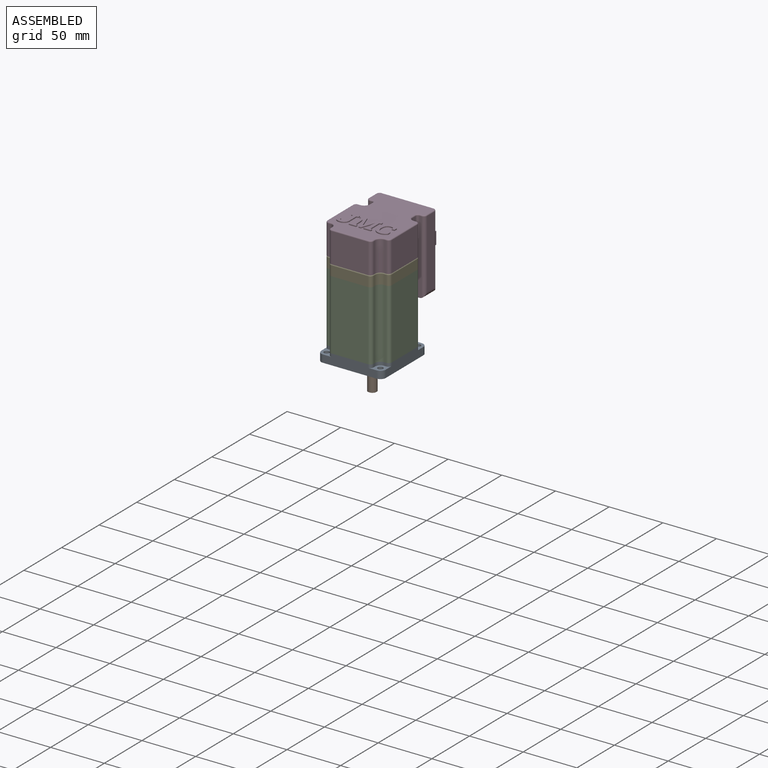
[diagram: assembled view]
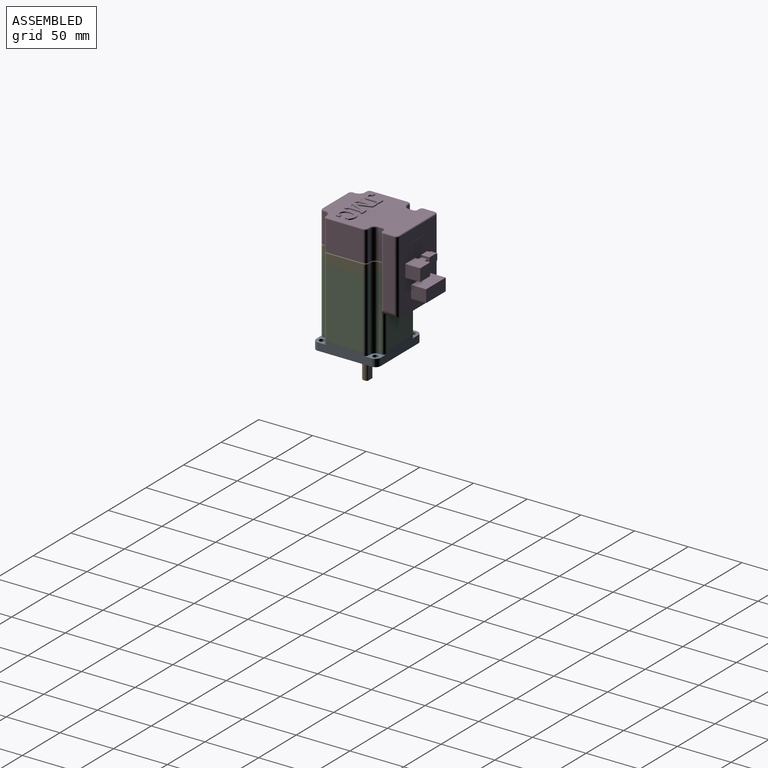
[diagram: assembled view, second angle]
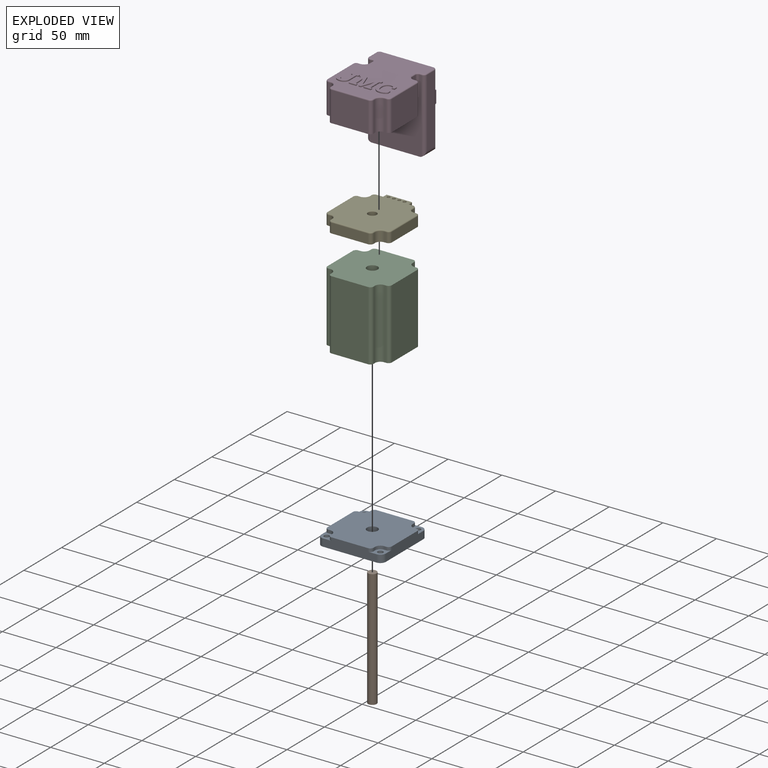
[diagram: exploded view]
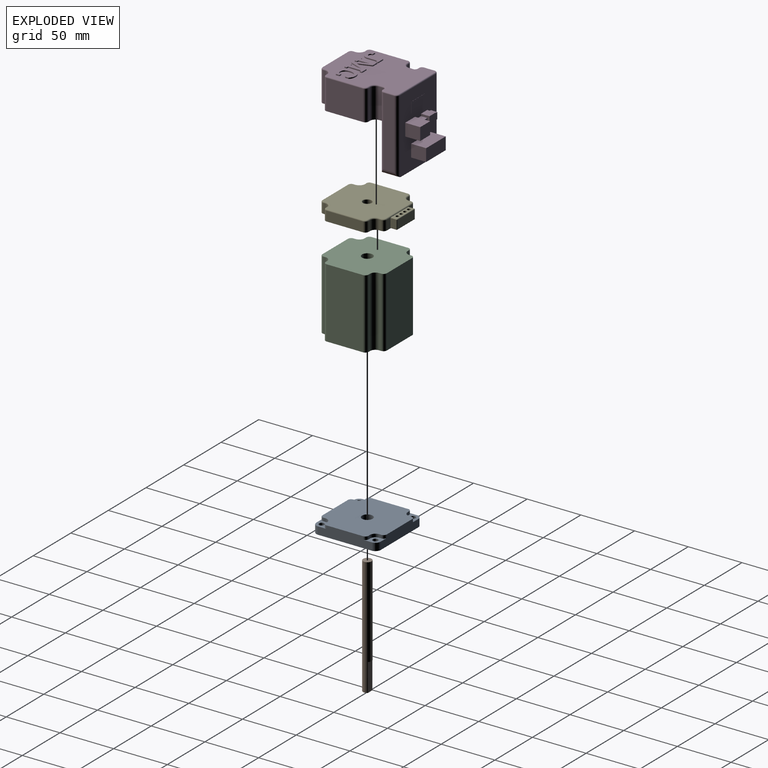
[diagram: exploded view, second angle]
ASSEMBLY  parts=5 mates=4
PART A: 45 faces, bbox 60x60x11.2 mm
  f0: plane 60x60mm, normal (0,0,-1), area 2447.6mm2, adj f5,f6,f7,f8,f9,f10,f11,f12
  f1: plane 13x13mm, normal (0,0,1), area 73.5mm2, adj f6,f7,f8,f14,f32,f33,f34,f35
  f2: plane 13x13mm, normal (0,0,1), area 73.5mm2, adj f10,f11,f12,f16,f22,f23,f24,f25
  f3: plane 13x13mm, normal (0,0,1), area 73.5mm2, adj f8,f9,f10,f13,f17,f18,f19,f20
  f4: plane 13x13mm, normal (0,0,1), area 73.5mm2, adj f5,f6,f12,f15,f27,f28,f29,f30
  f5: cylinder r=5mm len=7mm, axis (0,0,-1), area 55mm2, adj f0,f4,f6,f12
  f6: plane 50x10mm, normal (1,0,0), area 452mm2, adj f0,f1,f4,f5,f7,f31,f32,f37
  f7: cylinder r=5mm len=7mm, axis (0,0,-1), area 55mm2, adj f0,f1,f6,f8
  f8: plane 50x10mm, normal (0,1,0), area 452mm2, adj f0,f1,f3,f7,f9,f17,f36,f37
  f9: cylinder r=5mm len=7mm, axis (0,0,-1), area 55mm2, adj f0,f3,f8,f10
  f10: plane 50x10mm, normal (-1,0,0), area 452mm2, adj f0,f2,f3,f9,f11,f21,f22,f37
  f11: cylinder r=5mm len=7mm, axis (0,0,-1), area 55mm2, adj f0,f2,f10,f12
  f12: plane 50x10mm, normal (0,-1,0), area 452mm2, adj f0,f2,f4,f5,f11,f26,f27,f37
  f13: cylinder r=2.5mm len=6.5mm, axis (0,0,-1), area 102.1mm2, adj f3,f42
  f14: cylinder r=2.5mm len=6.5mm, axis (0,0,-1), area 102.1mm2, adj f1,f43
  f15: cylinder r=2.5mm len=6.5mm, axis (0,0,-1), area 102.1mm2, adj f4,f40
  f16: cylinder r=2.5mm len=6.5mm, axis (0,0,-1), area 102.1mm2, adj f2,f41
  f17: cylinder r=3mm len=3mm, axis (0,0,-1), area 14.1mm2, adj f3,f8,f18,f37
  f18: plane 3x2mm, normal (-1,0,0), area 6mm2, adj f3,f17,f19,f37
  f19: cylinder r=5mm len=5mm, axis (0,0,-1), area 23.6mm2, adj f3,f18,f20,f37
  f20: plane 3x2mm, normal (0,1,0), area 6mm2, adj f3,f19,f21,f37
  f21: cylinder r=3mm len=3mm, axis (0,0,-1), area 14.1mm2, adj f3,f10,f20,f37
  f22: cylinder r=3mm len=3mm, axis (0,0,-1), area 14.1mm2, adj f2,f10,f23,f37
  f23: plane 3x2mm, normal (0,-1,0), area 6mm2, adj f2,f22,f24,f37
  f24: cylinder r=5mm len=5mm, axis (0,0,-1), area 23.6mm2, adj f2,f23,f25,f37
  f25: plane 3x2mm, normal (-1,0,0), area 6mm2, adj f2,f24,f26,f37
  f26: cylinder r=3mm len=3mm, axis (0,0,-1), area 14.1mm2, adj f2,f12,f25,f37
  f27: cylinder r=3mm len=3mm, axis (0,0,-1), area 14.1mm2, adj f4,f12,f28,f37
  f28: plane 3x2mm, normal (1,0,0), area 6mm2, adj f4,f27,f29,f37
  f29: cylinder r=5mm len=5mm, axis (0,0,-1), area 23.6mm2, adj f4,f28,f30,f37
  f30: plane 3x2mm, normal (0,-1,0), area 6mm2, adj f4,f29,f31,f37
  f31: cylinder r=3mm len=3mm, axis (0,0,-1), area 14.1mm2, adj f4,f6,f30,f37
  f32: cylinder r=3mm len=3mm, axis (0,0,-1), area 14.1mm2, adj f1,f6,f33,f37
  f33: plane 3x2mm, normal (0,1,0), area 6mm2, adj f1,f32,f34,f37
  f34: cylinder r=5mm len=5mm, axis (0,0,-1), area 23.6mm2, adj f1,f33,f35,f37
  f35: plane 3x2mm, normal (1,0,0), area 6mm2, adj f1,f34,f36,f37
  f36: cylinder r=3mm len=3mm, axis (0,0,-1), area 14.1mm2, adj f1,f8,f35,f37
  f37: plane 60x60mm, normal (0,0,1), area 3127.5mm2, adj f6,f8,f10,f12,f17,f18,f19,f20
  f38: cylinder r=18mm len=36mm, axis (0,0,1), area 135.7mm2, adj f0,f39
  f39: plane 36x36mm, normal (0,0,-1), area 939.3mm2, adj f38,f44
  f40: torus R=3mm, axis (0,0,1), area 13.2mm2, adj f0,f15
  f41: torus R=3mm, axis (0,0,1), area 13.2mm2, adj f0,f16
  f42: torus R=3mm, axis (0,0,1), area 13.2mm2, adj f0,f13
  f43: torus R=3mm, axis (0,0,1), area 13.2mm2, adj f0,f14
  f44: cylinder r=5mm len=11.2mm, axis (0,0,-1), area 351.9mm2, adj f37,f39
PART B: 8 faces, bbox 8x8x110 mm
  f0: cylinder r=4mm len=110mm, axis (0,0,-1), area 2583.2mm2, adj f1,f2,f6,f7
  f1: plane 8x6.57mm, normal (0,0,1), area 43.1mm2, adj f0,f5,f7
  f2: plane 8x8mm, normal (0,0,-1), area 50.3mm2, adj f0
  f3: cylinder r=0.5mm len=4.9mm, axis (0,0,1), area 15.4mm2, adj f4,f5
  f4: plane 1x1mm, normal (0,0,1), area 0.8mm2, adj f3
  f5: torus R=0.6mm, axis (0,0,1), area 0.5mm2, adj f1,f3
  f6: plane 6.13x1.43mm, normal (0,0,1), area 6.1mm2, adj f0,f7
  f7: plane 26x6.13mm, normal (0,-1,0), area 159.3mm2, adj f0,f1,f6
PART C: 27 faces, bbox 60x60x65 mm
  f0: cylinder r=5mm len=65mm, axis (0,0,-1), area 510.5mm2, adj f1,f23,f24,f25
  f1: plane 65x2mm, normal (-1,0,0), area 130mm2, adj f0,f2,f24,f25
  f2: cylinder r=3mm len=65mm, axis (0,0,-1), area 306.3mm2, adj f1,f3,f24,f25
  f3: plane 65x34mm, normal (0,-1,0), area 2210mm2, adj f2,f4,f24,f25
  f4: cylinder r=3mm len=65mm, axis (0,0,-1), area 306.3mm2, adj f3,f5,f24,f25
  f5: plane 65x2mm, normal (1,0,0), area 130mm2, adj f4,f6,f24,f25
  f6: cylinder r=5mm len=65mm, axis (0,0,-1), area 510.5mm2, adj f5,f7,f24,f25
  f7: plane 65x2mm, normal (0,-1,0), area 130mm2, adj f6,f8,f24,f25
  f8: cylinder r=3mm len=65mm, axis (0,0,-1), area 306.3mm2, adj f7,f9,f24,f25
  f9: plane 65x34mm, normal (1,0,0), area 2210mm2, adj f8,f10,f24,f25
  f10: cylinder r=3mm len=65mm, axis (0,0,-1), area 306.3mm2, adj f9,f11,f24,f25
  f11: plane 65x2mm, normal (0,1,0), area 130mm2, adj f10,f12,f24,f25
  f12: cylinder r=5mm len=65mm, axis (0,0,-1), area 510.5mm2, adj f11,f13,f24,f25
  f13: plane 65x2mm, normal (1,0,0), area 130mm2, adj f12,f14,f24,f25
  f14: cylinder r=3mm len=65mm, axis (0,0,-1), area 306.3mm2, adj f13,f15,f24,f25
  f15: plane 65x34mm, normal (0,1,0), area 2210mm2, adj f14,f16,f24,f25
  f16: cylinder r=3mm len=65mm, axis (0,0,-1), area 306.3mm2, adj f15,f17,f24,f25
  f17: plane 65x2mm, normal (-1,0,0), area 130mm2, adj f16,f18,f24,f25
  f18: cylinder r=5mm len=65mm, axis (0,0,-1), area 510.5mm2, adj f17,f19,f24,f25
  f19: plane 65x2mm, normal (0,1,0), area 130mm2, adj f18,f20,f24,f25
  f20: cylinder r=3mm len=65mm, axis (0,0,-1), area 306.3mm2, adj f19,f21,f24,f25
  f21: plane 65x34mm, normal (-1,0,0), area 2210mm2, adj f20,f22,f24,f25
  f22: cylinder r=3mm len=65mm, axis (0,0,-1), area 306.3mm2, adj f21,f23,f24,f25
  f23: plane 65x2mm, normal (0,-1,0), area 130mm2, adj f0,f22,f24,f25
  f24: plane 60x60mm, normal (0,0,1), area 3127.5mm2, adj f0,f1,f2,f3,f4,f5,f6,f7
  f25: plane 60x60mm, normal (0,0,-1), area 3127.5mm2, adj f0,f1,f2,f3,f4,f5,f6,f7
  f26: cylinder r=5mm len=65mm, axis (0,0,1), area 2042mm2, adj f24,f25
PART D: 176 faces, bbox 60.5x91.2x71 mm
  f0: plane 6x4.85mm, normal (0,0,-1), area 29.1mm2, adj f2,f39,f60,f66
  f1: plane 6x4.85mm, normal (0,0,1), area 29.1mm2, adj f2,f39,f60,f66
  f2: plane 6x4.85mm, normal (0,1,0), area 29.1mm2, adj f0,f1,f60,f66
  f3: cylinder r=3mm len=68.58mm, axis (0,0,-1), area 314.1mm2, adj f4,f38,f43,f167
  f4: plane 64x10mm, normal (1,0,0), area 640mm2, adj f3,f5,f43,f165
  f5: cylinder r=3mm len=68.58mm, axis (0,0,-1), area 314.1mm2, adj f4,f39,f43,f163
  f6: cylinder r=3mm len=68.58mm, axis (0,0,-1), area 314.1mm2, adj f7,f39,f42,f159
  f7: plane 64x10mm, normal (-1,0,0), area 640mm2, adj f6,f8,f42,f157
  f8: cylinder r=3mm len=68.58mm, axis (0,0,-1), area 314.1mm2, adj f7,f38,f42,f155
  f9: plane 44.2x16mm, normal (0,0,-1), area 707.2mm2, adj f38,f39,f42,f43
  f10: plane 34x9mm, normal (0,1,0), area 306mm2, adj f11,f33,f34,f41
  f11: cylinder r=3mm len=9mm, axis (0,0,-1), area 42.4mm2, adj f10,f12,f34,f41
  f12: plane 28x4mm, normal (-1,0,0), area 94mm2, adj f11,f13,f34,f35,f41,f149
  f13: cylinder r=5mm len=28mm, axis (0,0,-1), area 219.9mm2, adj f12,f14,f34,f147
  f14: plane 28x2mm, normal (0,1,0), area 56mm2, adj f13,f15,f34,f145
  f15: cylinder r=3mm len=28mm, axis (0,0,-1), area 131.9mm2, adj f14,f16,f34,f143
  f16: plane 34x28mm, normal (-1,0,0), area 952mm2, adj f15,f17,f34,f144
  f17: cylinder r=3mm len=28mm, axis (0,0,-1), area 131.9mm2, adj f16,f18,f34,f146
  f18: plane 28x2mm, normal (0,-1,0), area 56mm2, adj f17,f19,f34,f148
  f19: cylinder r=5mm len=28mm, axis (0,0,-1), area 219.9mm2, adj f18,f20,f34,f150
  f20: plane 28x2mm, normal (-1,0,0), area 56mm2, adj f19,f21,f34,f152
  f21: cylinder r=3mm len=28mm, axis (0,0,-1), area 131.9mm2, adj f20,f22,f34,f154
  f22: plane 34x28mm, normal (0,-1,0), area 952mm2, adj f21,f23,f34,f156
  f23: cylinder r=3mm len=28mm, axis (0,0,-1), area 131.9mm2, adj f22,f24,f34,f158
  f24: plane 28x2mm, normal (1,0,0), area 56mm2, adj f23,f25,f34,f160
  f25: cylinder r=5mm len=28mm, axis (0,0,-1), area 219.9mm2, adj f24,f26,f34,f162
  f26: plane 28x2mm, normal (0,-1,0), area 56mm2, adj f25,f27,f34,f164
  f27: cylinder r=3mm len=28mm, axis (0,0,-1), area 131.9mm2, adj f26,f28,f34,f166
  f28: plane 34x28mm, normal (1,0,0), area 952mm2, adj f27,f29,f34,f168
  f29: cylinder r=3mm len=28mm, axis (0,0,-1), area 131.9mm2, adj f28,f30,f34,f170
  f30: plane 28x2mm, normal (0,1,0), area 56mm2, adj f29,f31,f34,f172
  f31: cylinder r=5mm len=28mm, axis (0,0,-1), area 219.9mm2, adj f30,f32,f34,f174
  f32: plane 28x2mm, normal (1,0,0), area 56mm2, adj f31,f33,f34,f36,f175
  f33: cylinder r=3mm len=9mm, axis (0,0,-1), area 42.4mm2, adj f10,f32,f34,f41
  f34: plane 60x60mm, normal (0,0,-1), area 3206mm2, adj f10,f11,f12,f13,f14,f15,f16,f17
  f35: cylinder r=2mm len=19mm, axis (0,0,-1), area 59.7mm2, adj f12,f38,f41,f151
  f36: plane 19x2mm, normal (1,0,0), area 38mm2, adj f32,f37,f41,f173
  f37: cylinder r=2mm len=19mm, axis (0,0,-1), area 59.7mm2, adj f36,f38,f41,f171
  f38: plane 69x48.2mm, normal (0,-1,0), area 2489.3mm2, adj f3,f8,f9,f35,f37,f41,f42,f43
  f39: plane 69x48.2mm, normal (0,1,0), area 2550.5mm2, adj f0,f1,f5,f6,f9,f42,f43,f44
  f40: plane 75x58mm, normal (0,0,1), area 3454.1mm2, adj f69,f70,f71,f72,f73,f74,f75,f76
  f41: plane 44x4mm, normal (0,0,-1), area 45.6mm2, adj f10,f11,f12,f33,f35,f36,f37,f38
  f42: cylinder r=5mm len=16mm, axis (0,1,0), area 112.6mm2, adj f6,f7,f8,f9,f38,f39
  f43: cylinder r=5mm len=16mm, axis (0,1,0), area 112.6mm2, adj f3,f4,f5,f9,f38,f39
  f44: plane 14x11.6mm, normal (-1,0,0), area 162.4mm2, adj f39,f45,f47,f48
  f45: plane 26x14mm, normal (0,0,1), area 364mm2, adj f39,f44,f46,f48
  f46: plane 14x11.6mm, normal (1,0,0), area 162.4mm2, adj f39,f45,f47,f48
  f47: plane 26x14mm, normal (0,0,-1), area 364mm2, adj f39,f44,f46,f48
  f48: plane 26x11.6mm, normal (0,1,0), area 301.6mm2, adj f44,f45,f46,f47
  f49: plane 14x11.6mm, normal (-1,0,0), area 162.4mm2, adj f39,f50,f52,f53
  f50: plane 14x13.1mm, normal (0,0,1), area 183.4mm2, adj f39,f49,f51,f53
  f51: plane 14x11.6mm, normal (1,0,0), area 162.4mm2, adj f39,f50,f52,f53
  f52: plane 14x13.1mm, normal (0,0,-1), area 183.4mm2, adj f39,f49,f51,f53
  f53: plane 13.1x11.6mm, normal (0,1,0), area 152mm2, adj f49,f50,f51,f52
  f54: plane 10x0.1mm, normal (-1,0,0), area 1mm2, adj f39,f55,f57,f58
  f55: plane 17x0.1mm, normal (0,0,1), area 1.7mm2, adj f39,f54,f56,f58
  f56: plane 10x0.1mm, normal (1,0,0), area 1mm2, adj f39,f55,f57,f58
  f57: plane 17x0.1mm, normal (0,0,-1), area 1.7mm2, adj f39,f54,f56,f58
  f58: plane 17x10mm, normal (0,1,0), area 170mm2, adj f54,f55,f56,f57
  f59: plane 6x4.85mm, normal (0,0,-1), area 29.1mm2, adj f39,f62,f63,f64
  f60: plane 6x6mm, normal (-1,0,0), area 36mm2, adj f0,f1,f2,f39
  f61: plane 6x4.85mm, normal (0,0,1), area 29.1mm2, adj f39,f62,f63,f64
  f62: plane 6x6mm, normal (1,0,0), area 36mm2, adj f39,f59,f61,f63
  f63: plane 6x4.85mm, normal (0,1,0), area 29.1mm2, adj f59,f61,f62,f64
  f64: plane 11.2x8mm, normal (1,0,0), area 53.6mm2, adj f39,f59,f61,f63,f65,f67,f68
  f65: plane 8.3x8mm, normal (0,0,-1), area 66.4mm2, adj f39,f64,f66,f68
  f66: plane 11.2x8mm, normal (-1,0,0), area 53.6mm2, adj f0,f1,f2,f39,f65,f67,f68
  f67: plane 8.3x8mm, normal (0,0,1), area 66.4mm2, adj f39,f64,f66,f68
  f68: plane 11.2x8.3mm, normal (0,1,0), area 93mm2, adj f64,f65,f66,f67
  f69: plane 1.97x1mm, normal (1,0,0), area 2mm2, adj f40,f70,f85,f86
  f70: plane 6.76x1mm, normal (0,1,0), area 6.8mm2, adj f40,f69,f71,f86
  f71: plane 1.97x1mm, normal (-1,0,0), area 2mm2, adj f40,f70,f72,f86
  f72: plane 1.75x1mm, normal (-0.19,-0.98,0), area 1.8mm2, adj f40,f71,f73,f86
  f73: plane 9.11x1mm, normal (-1,0,0), area 9.1mm2, adj f40,f72,f74,f86
  f74: extruded ~1.92x1mm, area 2.1mm2, adj f40,f73,f75,f86
  f75: extruded ~1.54x1mm, area 1.7mm2, adj f40,f74,f76,f86
  f76: extruded ~1.66x1mm, area 1.8mm2, adj f40,f75,f77,f86
  f77: extruded ~1.88x1mm, area 2mm2, adj f40,f76,f78,f86
  f78: plane 3.18x1mm, normal (0,1,0), area 3.2mm2, adj f40,f77,f79,f86
  f79: plane 1x0.07mm, normal (-0.94,0.35,0), area 0.1mm2, adj f40,f78,f80,f86
  f80: extruded ~3.66x1.44mm, area 4.1mm2, adj f40,f79,f81,f86
  f81: extruded ~4.05x1.24mm, area 4.3mm2, adj f40,f80,f82,f86
  f82: extruded ~3.89x1.38mm, area 4.2mm2, adj f40,f81,f83,f86
  f83: extruded ~3.75x1.54mm, area 4.2mm2, adj f40,f82,f84,f86
  f84: plane 9.11x1mm, normal (1,0,0), area 9.1mm2, adj f40,f83,f85,f86
  f85: plane 1.75x1mm, normal (0.19,-0.98,0), area 1.8mm2, adj f40,f69,f84,f86
  f86: plane 16.55x12.72mm, normal (0,0,1), area 80.6mm2, adj f69,f70,f71,f72,f73,f74,f75,f76
  f87: plane 1x0.07mm, normal (-0.16,-0.99,0), area 0.1mm2, adj f40,f88,f116,f117
  f88: plane 7.21x1mm, normal (-1,0.04,0), area 7.2mm2, adj f40,f87,f89,f117
  f89: plane 2.56x1mm, normal (-1,0,0), area 2.6mm2, adj f40,f88,f90,f117
  f90: plane 1.74x1mm, normal (-0.19,0.98,0), area 1.8mm2, adj f40,f89,f91,f117
  f91: plane 1.96x1mm, normal (-1,0,0), area 2mm2, adj f40,f90,f92,f117
  f92: plane 6.76x1mm, normal (0,-1,0), area 6.8mm2, adj f40,f91,f93,f117
  f93: plane 1.96x1mm, normal (1,0,0), area 2mm2, adj f40,f92,f94,f117
  f94: plane 1.75x1mm, normal (0.19,0.98,0), area 1.8mm2, adj f40,f93,f95,f117
  f95: plane 11.71x1mm, normal (1,0,0), area 11.7mm2, adj f40,f94,f96,f117
  f96: plane 1.75x1mm, normal (0.19,-0.98,0), area 1.8mm2, adj f40,f95,f97,f117
  f97: plane 1.97x1mm, normal (1,0,0), area 2mm2, adj f40,f96,f98,f117
  f98: plane 6.03x1mm, normal (0,1,0), area 6mm2, adj f40,f97,f99,f117
  f99: plane 12.02x4.19mm, normal (-0.94,0.33,0), area 12.7mm2, adj f40,f98,f100,f117
  f100: plane 1x0.07mm, normal (0,1,0), area 0.1mm2, adj f40,f99,f101,f117
  f101: plane 12.02x4.16mm, normal (0.95,0.33,0), area 12.7mm2, adj f40,f100,f102,f117
  f102: plane 6.01x1mm, normal (0,1,0), area 6mm2, adj f40,f101,f103,f117
  f103: plane 1.97x1mm, normal (-1,0,0), area 2mm2, adj f40,f102,f104,f117
  f104: plane 1.74x1mm, normal (-0.19,-0.98,0), area 1.8mm2, adj f40,f103,f105,f117
  f105: plane 11.71x1mm, normal (-1,0,0), area 11.7mm2, adj f40,f104,f106,f117
  f106: plane 1.74x1mm, normal (-0.19,0.98,0), area 1.8mm2, adj f40,f105,f107,f117
  f107: plane 1.96x1mm, normal (-1,0,0), area 2mm2, adj f40,f106,f108,f117
  f108: plane 6.76x1mm, normal (0,-1,0), area 6.8mm2, adj f40,f107,f109,f117
  f109: plane 1.96x1mm, normal (1,0,0), area 2mm2, adj f40,f108,f110,f117
  f110: plane 1.75x1mm, normal (0.19,0.98,0), area 1.8mm2, adj f40,f109,f111,f117
  f111: plane 2.56x1mm, normal (1,0,0), area 2.6mm2, adj f40,f110,f112,f117
  f112: plane 7.16x1mm, normal (1,0.04,0), area 7.2mm2, adj f40,f111,f113,f117
  f113: plane 1x0.07mm, normal (0.16,-0.99,0), area 0.1mm2, adj f40,f112,f114,f117
  f114: plane 12.03x4.35mm, normal (-0.94,-0.34,0), area 12.8mm2, adj f40,f113,f115,f117
  f115: plane 2.19x1mm, normal (0,-1,0), area 2.2mm2, adj f40,f114,f116,f117
  f116: plane 12.08x4.37mm, normal (0.94,-0.34,0), area 12.8mm2, adj f40,f87,f115,f117
  f117: plane 20.45x16.32mm, normal (0,0,1), area 199.2mm2, adj f87,f88,f89,f90,f91,f92,f93,f94
  f118: plane 2.43x1mm, normal (0,-1,0), area 2.4mm2, adj f40,f119,f141,f142
  f119: plane 3.23x1mm, normal (1,0,0), area 3.2mm2, adj f40,f118,f120,f142
  f120: extruded ~2.52x1.82mm, area 3.1mm2, adj f40,f119,f121,f142
  f121: extruded ~3.42x1mm, area 3.5mm2, adj f40,f120,f122,f142
  f122: extruded ~5.39x2.29mm, area 6mm2, adj f40,f121,f123,f142
  f123: extruded ~5.84x2.08mm, area 6.4mm2, adj f40,f122,f124,f142
  f124: plane 1x0.55mm, normal (-1,0,0), area 0.5mm2, adj f40,f123,f125,f142
  f125: extruded ~5.84x2.09mm, area 6.4mm2, adj f40,f124,f126,f142
  f126: extruded ~5.38x2.28mm, area 6mm2, adj f40,f125,f127,f142
  f127: extruded ~3.42x1mm, area 3.5mm2, adj f40,f126,f128,f142
  f128: extruded ~2.52x1.82mm, area 3.1mm2, adj f40,f127,f129,f142
  f129: plane 3.23x1mm, normal (1,0,0), area 3.2mm2, adj f40,f128,f130,f142
  f130: plane 2.43x1mm, normal (0,1,0), area 2.4mm2, adj f40,f129,f131,f142
  f131: plane 2.17x1mm, normal (-0.99,0.15,0), area 2.2mm2, adj f40,f130,f132,f142
  f132: extruded ~1.24x1mm, area 1.5mm2, adj f40,f131,f133,f142
  f133: extruded ~1.76x1mm, area 1.8mm2, adj f40,f132,f134,f142
  f134: extruded ~3.23x1.56mm, area 3.7mm2, adj f40,f133,f135,f142
  f135: extruded ~4.05x1.14mm, area 4.3mm2, adj f40,f134,f136,f142
  f136: plane 1x0.57mm, normal (1,0,0), area 0.6mm2, adj f40,f135,f137,f142
  f137: extruded ~4.04x1.15mm, area 4.3mm2, adj f40,f136,f138,f142
  f138: extruded ~3.28x1.55mm, area 3.8mm2, adj f40,f137,f139,f142
  f139: extruded ~1.73x1mm, area 1.8mm2, adj f40,f138,f140,f142
  f140: extruded ~1.21x1mm, area 1.4mm2, adj f40,f139,f141,f142
  f141: plane 2.17x1mm, normal (-0.99,-0.15,0), area 2.2mm2, adj f40,f118,f140,f142
  f142: plane 16.79x13.41mm, normal (0,0,1), area 101.1mm2, adj f118,f119,f120,f121,f122,f123,f124,f125
  f143: torus R=2mm, axis (0,0,1), area 6.5mm2, adj f15,f40,f144,f145
  f144: cylinder r=1mm len=34mm, axis (0,1,0), area 53.4mm2, adj f16,f40,f143,f146
  f145: cylinder r=1mm len=2mm, axis (1,0,0), area 3.1mm2, adj f14,f40,f143,f147
  f146: torus R=2mm, axis (0,0,1), area 6.5mm2, adj f17,f40,f144,f148
  f147: torus R=6mm, axis (0,0,1), area 13.2mm2, adj f13,f40,f145,f149
  f148: cylinder r=1mm len=2mm, axis (-1,0,0), area 3.1mm2, adj f18,f40,f146,f150
  f149: cylinder r=1mm len=4mm, axis (0,1,0), area 6.3mm2, adj f12,f40,f147,f151
  f150: torus R=6mm, axis (0,0,1), area 13.2mm2, adj f19,f40,f148,f152
  f151: torus R=3mm, axis (0,0,1), area 5.8mm2, adj f35,f40,f149,f153
  f152: cylinder r=1mm len=2mm, axis (0,1,0), area 3.1mm2, adj f20,f40,f150,f154
  f153: cylinder r=1mm len=2.1mm, axis (-1,0,0), area 3.3mm2, adj f38,f40,f151,f155
  f154: torus R=2mm, axis (0,0,1), area 6.5mm2, adj f21,f40,f152,f156
  f155: torus R=2mm, axis (0,0,1), area 6.5mm2, adj f8,f40,f153,f157
  f156: cylinder r=1mm len=34mm, axis (-1,0,0), area 53.4mm2, adj f22,f40,f154,f158
  f157: cylinder r=1mm len=10mm, axis (0,1,0), area 15.7mm2, adj f7,f40,f155,f159
  f158: torus R=2mm, axis (0,0,1), area 6.5mm2, adj f23,f40,f156,f160
  f159: torus R=2mm, axis (0,0,1), area 6.5mm2, adj f6,f40,f157,f161
  f160: cylinder r=1mm len=2mm, axis (0,-1,0), area 3.1mm2, adj f24,f40,f158,f162
  f161: cylinder r=1mm len=48.2mm, axis (1,0,0), area 75.7mm2, adj f39,f40,f159,f163
  f162: torus R=6mm, axis (0,0,1), area 13.2mm2, adj f25,f40,f160,f164
  f163: torus R=2mm, axis (0,0,1), area 6.5mm2, adj f5,f40,f161,f165
  f164: cylinder r=1mm len=2mm, axis (-1,0,0), area 3.1mm2, adj f26,f40,f162,f166
  f165: cylinder r=1mm len=10mm, axis (0,-1,0), area 15.7mm2, adj f4,f40,f163,f167
  f166: torus R=2mm, axis (0,0,1), area 6.5mm2, adj f27,f40,f164,f168
  f167: torus R=2mm, axis (0,0,1), area 6.5mm2, adj f3,f40,f165,f169
  f168: cylinder r=1mm len=34mm, axis (0,-1,0), area 53.4mm2, adj f28,f40,f166,f170
  f169: cylinder r=1mm len=2.1mm, axis (-1,0,0), area 3.3mm2, adj f38,f40,f167,f171
  f170: torus R=2mm, axis (0,0,1), area 6.5mm2, adj f29,f40,f168,f172
  f171: torus R=3mm, axis (0,0,1), area 5.8mm2, adj f37,f40,f169,f173
  f172: cylinder r=1mm len=2mm, axis (1,0,0), area 3.1mm2, adj f30,f40,f170,f174
  f173: cylinder r=1mm len=2mm, axis (0,-1,0), area 3.1mm2, adj f36,f40,f171,f175
  f174: torus R=6mm, axis (0,0,1), area 13.2mm2, adj f31,f40,f172,f175
  f175: cylinder r=1mm len=2mm, axis (0,-1,0), area 3.1mm2, adj f32,f40,f173,f174
PART E: 77 faces, bbox 60.5x66.2x10 mm
  f0: plane 9x5.5mm, normal (0,1,0), area 45.1mm2, adj f23,f26,f48,f53,f69,f71
  f1: plane 9x5.5mm, normal (0,1,0), area 45.1mm2, adj f22,f26,f48,f55,f73,f75
  f2: cylinder r=5mm len=9mm, axis (0,0,-1), area 70.7mm2, adj f3,f24,f26,f51
  f3: plane 9x2mm, normal (0,1,0), area 18mm2, adj f2,f4,f26,f49
  f4: cylinder r=3mm len=9mm, axis (0,0,-1), area 42.4mm2, adj f3,f5,f26,f47
  f5: plane 34x9mm, normal (-1,0,0), area 306mm2, adj f4,f6,f26,f45
  f6: cylinder r=3mm len=9mm, axis (0,0,-1), area 42.4mm2, adj f5,f7,f26,f43
  f7: plane 9x2mm, normal (0,-1,0), area 18mm2, adj f6,f8,f26,f41
  f8: cylinder r=5mm len=9mm, axis (0,0,-1), area 70.7mm2, adj f7,f9,f26,f39
  f9: plane 9x2mm, normal (-1,0,0), area 18mm2, adj f8,f10,f26,f37
  f10: cylinder r=3mm len=9mm, axis (0,0,-1), area 42.4mm2, adj f9,f11,f26,f35
  f11: plane 34x9mm, normal (0,-1,0), area 306mm2, adj f10,f12,f26,f33
  f12: cylinder r=3mm len=9mm, axis (0,0,-1), area 42.4mm2, adj f11,f13,f26,f31
  f13: plane 9x2mm, normal (1,0,0), area 18mm2, adj f12,f14,f26,f29
  f14: cylinder r=5mm len=9mm, axis (0,0,-1), area 70.7mm2, adj f13,f15,f26,f30
  f15: plane 9x2mm, normal (0,-1,0), area 18mm2, adj f14,f16,f26,f32
  f16: cylinder r=3mm len=9mm, axis (0,0,-1), area 42.4mm2, adj f15,f17,f26,f34
  f17: plane 34x9mm, normal (1,0,0), area 306mm2, adj f16,f18,f26,f36
  f18: cylinder r=3mm len=9mm, axis (0,0,-1), area 42.4mm2, adj f17,f19,f26,f38
  f19: plane 9x2mm, normal (0,1,0), area 18mm2, adj f18,f20,f26,f40
  f20: cylinder r=5mm len=9mm, axis (0,0,-1), area 70.7mm2, adj f19,f21,f26,f42
  f21: plane 9x2mm, normal (1,0,0), area 18mm2, adj f20,f22,f26,f44
  f22: cylinder r=3mm len=9mm, axis (0,0,-1), area 42.4mm2, adj f1,f21,f26,f46
  f23: cylinder r=3mm len=9mm, axis (0,0,-1), area 42.4mm2, adj f0,f24,f26,f50
  f24: plane 9x2mm, normal (-1,0,0), area 18mm2, adj f2,f23,f26,f52
  f25: plane 58x58mm, normal (0,0,1), area 2924.4mm2, adj f28,f29,f30,f31,f32,f33,f34,f35
  f26: plane 65.5x60mm, normal (0,0,-1), area 3282.2mm2, adj f0,f1,f2,f3,f4,f5,f6,f7
  f27: cylinder r=4mm len=9.5mm, axis (0,0,1), area 238.8mm2, adj f26,f28
  f28: torus R=4.5mm, axis (0,0,-1), area 20.6mm2, adj f25,f27
  f29: cylinder r=1mm len=2mm, axis (0,1,0), area 3.1mm2, adj f13,f25,f30,f31
  f30: torus R=6mm, axis (0,0,-1), area 13.2mm2, adj f14,f25,f29,f32
  f31: torus R=2mm, axis (0,0,-1), area 6.5mm2, adj f12,f25,f29,f33
  f32: cylinder r=1mm len=2mm, axis (1,0,0), area 3.1mm2, adj f15,f25,f30,f34
  f33: cylinder r=1mm len=34mm, axis (1,0,0), area 53.4mm2, adj f11,f25,f31,f35
  f34: torus R=2mm, axis (0,0,-1), area 6.5mm2, adj f16,f25,f32,f36
  f35: torus R=2mm, axis (0,0,-1), area 6.5mm2, adj f10,f25,f33,f37
  f36: cylinder r=1mm len=34mm, axis (0,1,0), area 53.4mm2, adj f17,f25,f34,f38
  f37: cylinder r=1mm len=2mm, axis (0,-1,0), area 3.1mm2, adj f9,f25,f35,f39
  f38: torus R=2mm, axis (0,0,-1), area 6.5mm2, adj f18,f25,f36,f40
  f39: torus R=6mm, axis (0,0,-1), area 13.2mm2, adj f8,f25,f37,f41
  f40: cylinder r=1mm len=2mm, axis (-1,0,0), area 3.1mm2, adj f19,f25,f38,f42
  f41: cylinder r=1mm len=2mm, axis (1,0,0), area 3.1mm2, adj f7,f25,f39,f43
  f42: torus R=6mm, axis (0,0,-1), area 13.2mm2, adj f20,f25,f40,f44
  f43: torus R=2mm, axis (0,0,-1), area 6.5mm2, adj f6,f25,f41,f45
  f44: cylinder r=1mm len=2mm, axis (0,1,0), area 3.1mm2, adj f21,f25,f42,f46
  f45: cylinder r=1mm len=34mm, axis (0,-1,0), area 53.4mm2, adj f5,f25,f43,f47
  f46: torus R=2mm, axis (0,0,-1), area 6.5mm2, adj f22,f25,f44,f48
  f47: torus R=2mm, axis (0,0,-1), area 6.5mm2, adj f4,f25,f45,f49
  f48: cylinder r=1mm len=34mm, axis (-1,0,0), area 53.4mm2, adj f0,f1,f25,f46,f50,f54
  f49: cylinder r=1mm len=2mm, axis (-1,0,0), area 3.1mm2, adj f3,f25,f47,f51
  f50: torus R=2mm, axis (0,0,-1), area 6.5mm2, adj f23,f25,f48,f52
  f51: torus R=6mm, axis (0,0,-1), area 13.2mm2, adj f2,f25,f49,f52
  f52: cylinder r=1mm len=2mm, axis (0,-1,0), area 3.1mm2, adj f24,f25,f50,f51
  f53: plane 8x5.5mm, normal (-1,0,0), area 44mm2, adj f0,f67,f69,f71
  f54: plane 23x5.5mm, normal (0,0,1), area 98.2mm2, adj f48,f57,f59,f61,f63,f65,f71,f73
  f55: plane 8x5.5mm, normal (1,0,0), area 44mm2, adj f1,f66,f73,f75
  f56: plane 23x8mm, normal (0,1,0), area 184mm2, adj f65,f66,f67,f68
  f57: cylinder r=1.5mm len=3mm, axis (0,0,1), area 28.3mm2, adj f54,f58
  f58: plane 3x3mm, normal (0,0,1), area 7.1mm2, adj f57
  f59: cylinder r=1.5mm len=3mm, axis (0,0,1), area 28.3mm2, adj f54,f60
  f60: plane 3x3mm, normal (0,0,1), area 7.1mm2, adj f59
  f61: cylinder r=1.5mm len=3mm, axis (0,0,1), area 28.3mm2, adj f54,f62
  f62: plane 3x3mm, normal (0,0,1), area 7.1mm2, adj f61
  f63: cylinder r=1.5mm len=3mm, axis (0,0,1), area 28.3mm2, adj f54,f64
  f64: plane 3x3mm, normal (0,0,1), area 7.1mm2, adj f63
  f65: cylinder r=0.5mm len=23mm, axis (-1,0,0), area 18.1mm2, adj f54,f56,f72,f74
  f66: cylinder r=0.5mm len=8mm, axis (0,0,1), area 6.3mm2, adj f55,f56,f74,f76
  f67: cylinder r=0.5mm len=8mm, axis (0,0,-1), area 6.3mm2, adj f53,f56,f70,f72
  f68: cylinder r=0.5mm len=23mm, axis (-1,0,0), area 18.1mm2, adj f26,f56,f70,f76
  f69: cylinder r=0.5mm len=5.5mm, axis (0,1,0), area 4.3mm2, adj f0,f26,f53,f70
  f70: sphere r=0.5mm, area 0.4mm2, adj f67,f68,f69
  f71: cylinder r=0.5mm len=5.5mm, axis (0,-1,0), area 4.3mm2, adj f0,f53,f54,f72
  f72: sphere r=0.5mm, area 0.4mm2, adj f65,f67,f71
  f73: cylinder r=0.5mm len=5.5mm, axis (0,-1,0), area 4.3mm2, adj f1,f54,f55,f74
  f74: sphere r=0.5mm, area 0.4mm2, adj f65,f66,f73
  f75: cylinder r=0.5mm len=5.5mm, axis (0,1,0), area 4.3mm2, adj f1,f26,f55,f76
  f76: sphere r=0.5mm, area 0.4mm2, adj f66,f68,f75
PLACE A t=(11.87,2.11,0)mm fixed
PLACE B rot(axis=(1,0,0),180deg) t=(8.16,2,81.8)mm
PLACE C t=(33.46,-1.73,10)mm
PLACE D t=(45.11,-5.72,75)mm
PLACE E t=(45.11,-5.72,75)mm
MATE fastened A.f38 <-> C.f26  axis (0,0,1) through (8.16,2,10)mm
MATE revolute A.f38 <-> B.f0  axis (0,0,-1) through (8.16,2,-1.2)mm
MATE fastened C.f26 <-> E.f27  axis (0,0,1) through (8.16,2,75)mm
MATE fastened D.f34 <-> E.f27  axis (0,0,-1) through (8.16,2,85)mm
